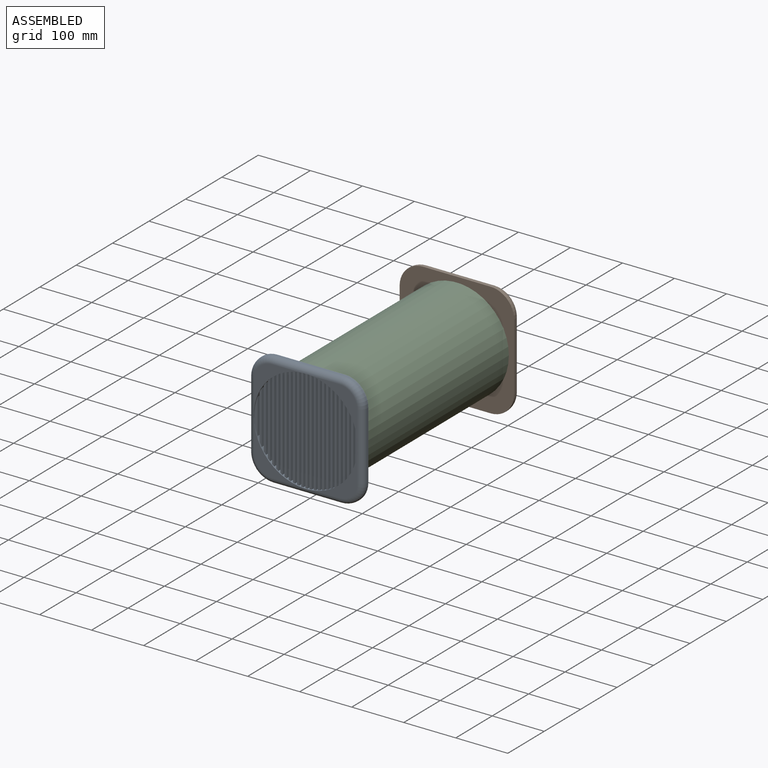
[diagram: assembled view]
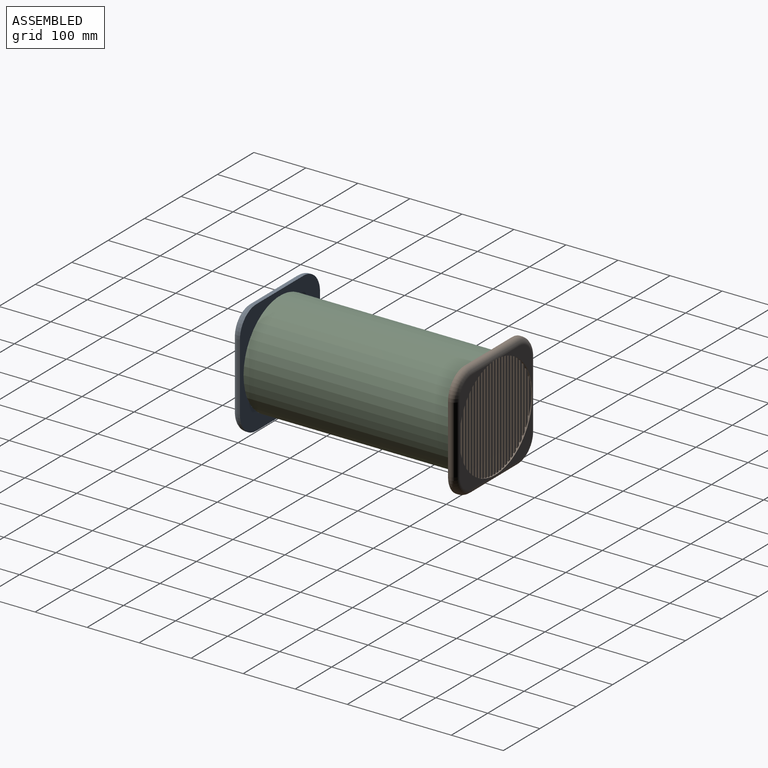
[diagram: assembled view, second angle]
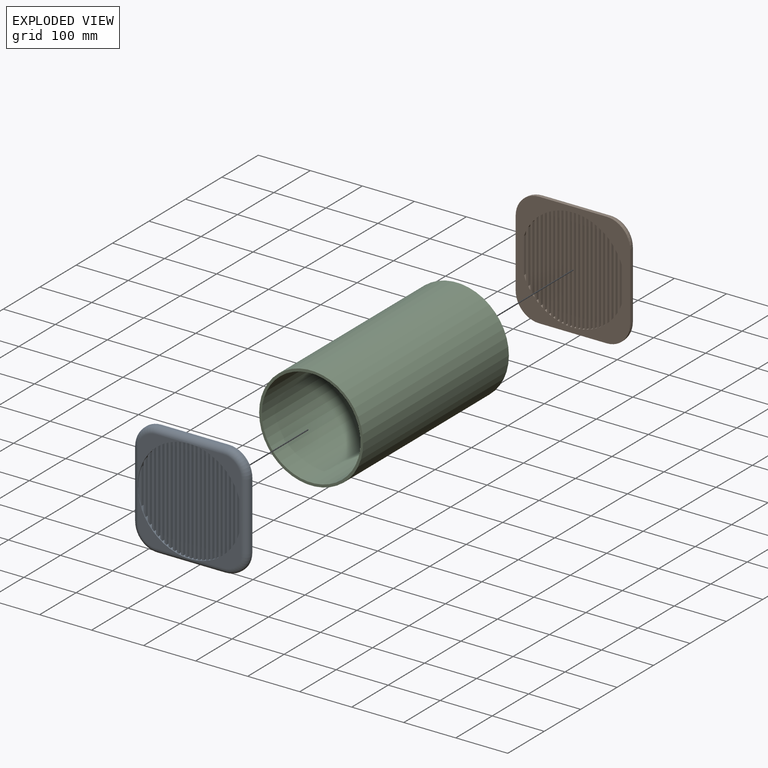
[diagram: exploded view]
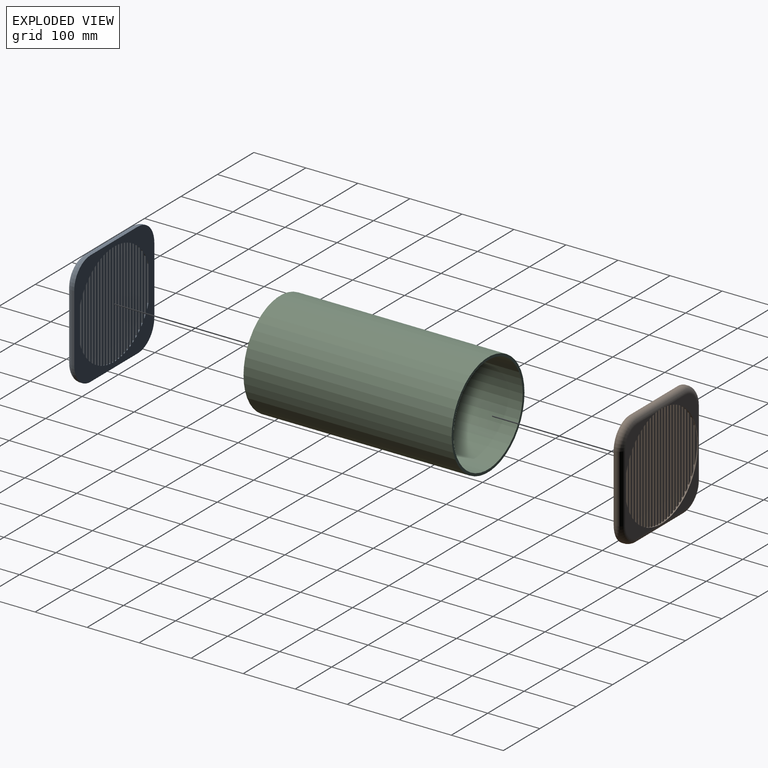
[diagram: exploded view, second angle]
ASSEMBLY  parts=3 mates=2
PART A: 95 faces, bbox 227.4x227.4x15 mm
  f0: plane 84.89x84.89mm, normal (0,0,1), area 1717.8mm2, adj f10,f17,f19,f21
  f1: plane 84.89x84.89mm, normal (0,0,1), area 1717.8mm2, adj f10,f18,f20,f21
  f2: plane 84.89x84.89mm, normal (0,0,1), area 1717.8mm2, adj f10,f14,f15,f17
  f3: plane 130x4mm, normal (0,-1,0), area 520mm2, adj f4,f11,f13,f18
  f4: cylinder r=45mm len=45mm, axis (0,0,-1), area 282.7mm2, adj f3,f5,f13,f20
  f5: plane 130x4mm, normal (1,0,0), area 520mm2, adj f4,f6,f13,f21
  f6: cylinder r=45mm len=45mm, axis (0,0,-1), area 282.7mm2, adj f5,f7,f13,f19
  f7: plane 130x4mm, normal (0,1,0), area 520mm2, adj f6,f8,f13,f17
  f8: cylinder r=45mm len=45mm, axis (0,0,-1), area 282.7mm2, adj f7,f9,f13,f15
  f9: plane 130x4mm, normal (-1,0,0), area 520mm2, adj f8,f11,f13,f14
  f10: cylinder r=100mm len=200mm, axis (0,0,-1), area 4581.9mm2, adj f0,f1,f2,f12,f13,f14,f17,f18
  f11: cylinder r=45mm len=45mm, axis (0,0,-1), area 282.7mm2, adj f3,f9,f13,f16
  f12: plane 84.89x84.89mm, normal (0,0,1), area 1717.8mm2, adj f10,f14,f16,f18
  f13: plane 220x220mm, normal (0,0,-1), area 31090.7mm2, adj f3,f4,f5,f6,f7,f8,f9,f10
  f14: cylinder r=11mm len=130mm, axis (0,1,0), area 2227.4mm2, adj f2,f9,f10,f12,f15,f16
  f15: torus R=34mm, axis (0,0,1), area 1112.9mm2, adj f2,f8,f14,f17
  f16: torus R=34mm, axis (0,0,1), area 1112.9mm2, adj f11,f12,f14,f18
  f17: cylinder r=11mm len=130mm, axis (1,0,0), area 2227.4mm2, adj f0,f2,f7,f10,f15,f19
  f18: cylinder r=11mm len=130mm, axis (-1,0,0), area 2227.4mm2, adj f1,f3,f10,f12,f16,f20
  f19: torus R=34mm, axis (0,0,1), area 1112.9mm2, adj f0,f6,f17,f21
  f20: torus R=34mm, axis (0,0,1), area 1112.9mm2, adj f1,f4,f18,f21
  f21: cylinder r=11mm len=130mm, axis (0,-1,0), area 2227.4mm2, adj f0,f1,f5,f10,f19,f20
  f22: plane 68.24x6mm, normal (0,0,1), area 274.6mm2, adj f10,f24
  f23: plane 68.24x6mm, normal (0,0,1), area 274.6mm2, adj f10,f94
  f24: plane 68.24x13mm, normal (-1,0,0), area 887.1mm2, adj f10,f13,f22
  f25: plane 102.06x13mm, normal (-1,0,0), area 1326.8mm2, adj f10,f13,f27
  f26: plane 87.18x13mm, normal (1,0,0), area 1133.3mm2, adj f10,f13,f27
  f27: plane 102.06x4mm, normal (0,0,1), area 379.5mm2, adj f10,f25,f26
  f28: plane 125.16x13mm, normal (-1,0,0), area 1627mm2, adj f10,f13,f30
  f29: plane 114.47x13mm, normal (1,0,0), area 1488.1mm2, adj f10,f13,f30
  f30: plane 125.16x4mm, normal (0,0,1), area 479.8mm2, adj f10,f28,f29
  f31: plane 134.52x13mm, normal (1,0,0), area 1748.8mm2, adj f10,f13,f33
  f32: plane 142.83x13mm, normal (-1,0,0), area 1856.8mm2, adj f10,f13,f33
  f33: plane 142.83x4mm, normal (0,0,1), area 555mm2, adj f10,f31,f32
  f34: plane 156.92x13mm, normal (-1,0,0), area 2040mm2, adj f10,f13,f36
  f35: plane 150.25x13mm, normal (1,0,0), area 1953.3mm2, adj f10,f13,f36
  f36: plane 156.92x4mm, normal (0,0,1), area 614.6mm2, adj f10,f34,f35
  f37: plane 162.92x13mm, normal (1,0,0), area 2118mm2, adj f10,f13,f39
  f38: plane 168.33x13mm, normal (-1,0,0), area 2188.3mm2, adj f10,f13,f39
  f39: plane 168.33x4mm, normal (0,0,1), area 662.7mm2, adj f10,f37,f38
  f40: plane 177.58x13mm, normal (-1,0,0), area 2308.6mm2, adj f10,f13,f42
  f41: plane 173.21x13mm, normal (1,0,0), area 2251.7mm2, adj f10,f13,f42
  f42: plane 177.58x4mm, normal (0,0,1), area 701.7mm2, adj f10,f40,f41
  f43: plane 181.51x13mm, normal (1,0,0), area 2359.6mm2, adj f10,f13,f45
  f44: plane 185x13mm, normal (-1,0,0), area 2405mm2, adj f10,f13,f45
  f45: plane 185x4mm, normal (0,0,1), area 733.1mm2, adj f10,f43,f44
  f46: plane 188.09x13mm, normal (1,0,0), area 2445.1mm2, adj f10,f13,f48
  f47: plane 190.79x13mm, normal (-1,0,0), area 2480.2mm2, adj f10,f13,f48
  f48: plane 190.79x4mm, normal (0,0,1), area 757.9mm2, adj f10,f46,f47
  f49: plane 195.1x13mm, normal (-1,0,0), area 2536.3mm2, adj f10,f13,f51
  f50: plane 193.12x13mm, normal (1,0,0), area 2510.6mm2, adj f10,f13,f51
  f51: plane 195.1x4mm, normal (0,0,1), area 776.6mm2, adj f10,f49,f50
  f52: plane 196.73x13mm, normal (1,0,0), area 2557.5mm2, adj f10,f13,f54
  f53: plane 198.03x13mm, normal (-1,0,0), area 2574.4mm2, adj f10,f13,f54
  f54: plane 198.03x4mm, normal (0,0,1), area 789.6mm2, adj f10,f52,f53
  f55: plane 199.64x13mm, normal (-1,0,0), area 2595.3mm2, adj f10,f13,f57
  f56: plane 199x13mm, normal (1,0,0), area 2587mm2, adj f10,f13,f57
  f57: plane 199.64x4mm, normal (0,0,1), area 797.4mm2, adj f10,f55,f56
  f58: plane 199.96x13mm, normal (1,0,0), area 2599.5mm2, adj f10,f13,f60
  f59: plane 199.96x13mm, normal (-1,0,0), area 2599.5mm2, adj f10,f13,f60
  f60: plane 200x4mm, normal (0,0,1), area 799.9mm2, adj f10,f58,f59
  f61: plane 199.64x13mm, normal (1,0,0), area 2595.3mm2, adj f10,f13,f63
  f62: plane 199x13mm, normal (-1,0,0), area 2587mm2, adj f10,f13,f63
  f63: plane 199.64x4mm, normal (0,0,1), area 797.4mm2, adj f10,f61,f62
  f64: plane 196.73x13mm, normal (-1,0,0), area 2557.5mm2, adj f10,f13,f66
  f65: plane 198.03x13mm, normal (1,0,0), area 2574.4mm2, adj f10,f13,f66
  f66: plane 198.03x4mm, normal (0,0,1), area 789.6mm2, adj f10,f64,f65
  f67: plane 195.1x13mm, normal (1,0,0), area 2536.3mm2, adj f10,f13,f69
  f68: plane 193.12x13mm, normal (-1,0,0), area 2510.6mm2, adj f10,f13,f69
  f69: plane 195.1x4mm, normal (0,0,1), area 776.6mm2, adj f10,f67,f68
  f70: plane 188.09x13mm, normal (-1,0,0), area 2445.1mm2, adj f10,f13,f72
  f71: plane 190.79x13mm, normal (1,0,0), area 2480.2mm2, adj f10,f13,f72
  f72: plane 190.79x4mm, normal (0,0,1), area 757.9mm2, adj f10,f70,f71
  f73: plane 185x13mm, normal (1,0,0), area 2405mm2, adj f10,f13,f75
  f74: plane 181.51x13mm, normal (-1,0,0), area 2359.6mm2, adj f10,f13,f75
  f75: plane 185x4mm, normal (0,0,1), area 733.1mm2, adj f10,f73,f74
  f76: plane 177.58x13mm, normal (1,0,0), area 2308.6mm2, adj f10,f13,f78
  f77: plane 173.21x13mm, normal (-1,0,0), area 2251.7mm2, adj f10,f13,f78
  f78: plane 177.58x4mm, normal (0,0,1), area 701.7mm2, adj f10,f76,f77
  f79: plane 162.92x13mm, normal (-1,0,0), area 2118mm2, adj f10,f13,f81
  f80: plane 168.33x13mm, normal (1,0,0), area 2188.3mm2, adj f10,f13,f81
  f81: plane 168.33x4mm, normal (0,0,1), area 662.7mm2, adj f10,f79,f80
  f82: plane 156.92x13mm, normal (1,0,0), area 2040mm2, adj f10,f13,f84
  f83: plane 150.25x13mm, normal (-1,0,0), area 1953.3mm2, adj f10,f13,f84
  f84: plane 156.92x4mm, normal (0,0,1), area 614.6mm2, adj f10,f82,f83
  f85: plane 134.52x13mm, normal (-1,0,0), area 1748.8mm2, adj f10,f13,f87
  f86: plane 142.83x13mm, normal (1,0,0), area 1856.8mm2, adj f10,f13,f87
  f87: plane 142.83x4mm, normal (0,0,1), area 555mm2, adj f10,f85,f86
  f88: plane 125.16x13mm, normal (1,0,0), area 1627mm2, adj f10,f13,f90
  f89: plane 114.47x13mm, normal (-1,0,0), area 1488.1mm2, adj f10,f13,f90
  f90: plane 125.16x4mm, normal (0,0,1), area 479.8mm2, adj f10,f88,f89
  f91: plane 87.18x13mm, normal (-1,0,0), area 1133.3mm2, adj f10,f13,f93
  f92: plane 102.06x13mm, normal (1,0,0), area 1326.8mm2, adj f10,f13,f93
  f93: plane 102.06x4mm, normal (0,0,1), area 379.5mm2, adj f10,f91,f92
  f94: plane 68.24x13mm, normal (1,0,0), area 887.1mm2, adj f10,f13,f23
PART B: same geometry as A
PART C: 4 faces, bbox 200x200x400 mm
  f0: cylinder r=95mm len=400mm, axis (0,0,-1), area 238761mm2, adj f2,f3
  f1: cylinder r=100mm len=400mm, axis (0,0,-1), area 251327.4mm2, adj f2,f3
  f2: plane 200x200mm, normal (0,0,1), area 3063.1mm2, adj f0,f1
  f3: plane 200x200mm, normal (0,0,-1), area 3063.1mm2, adj f0,f1
PLACE A rot(axis=(1,0,0),90deg) t=(-303.66,-592.07,39.48)mm
PLACE B rot(axis=(0,-0.71,-0.71),180deg) t=(-303.66,-192.07,39.48)mm
PLACE C rot(axis=(1,0,0),90deg) t=(-303.66,-192.07,39.48)mm
MATE fastened C.f0 <-> A.f10  axis (0,1,0) through (-303.66,-592.07,39.48)mm
MATE fastened B.f10 <-> C.f0  axis (0,-1,0) through (-303.66,-192.07,39.48)mm
